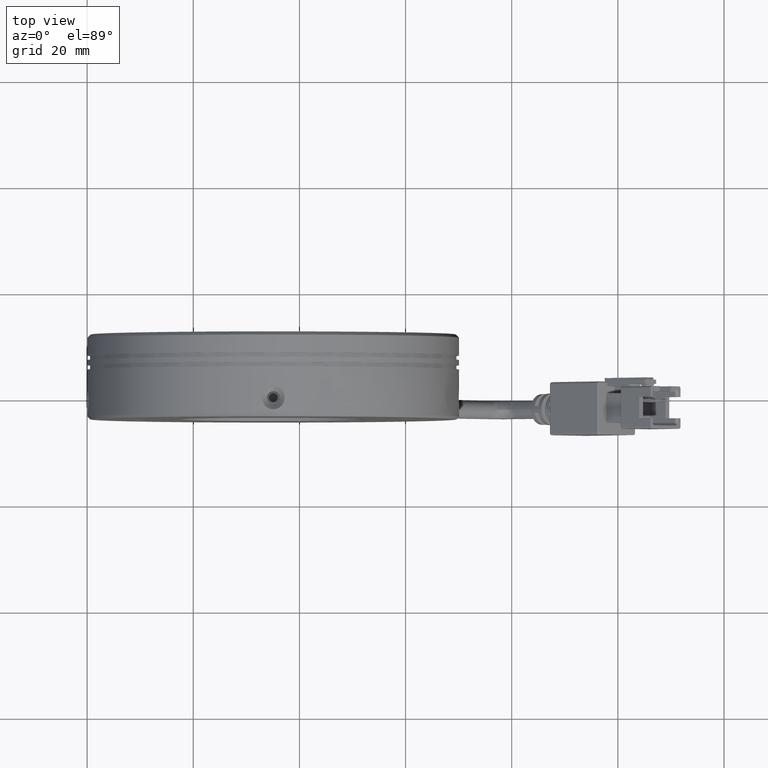
[diagram: clean part render]
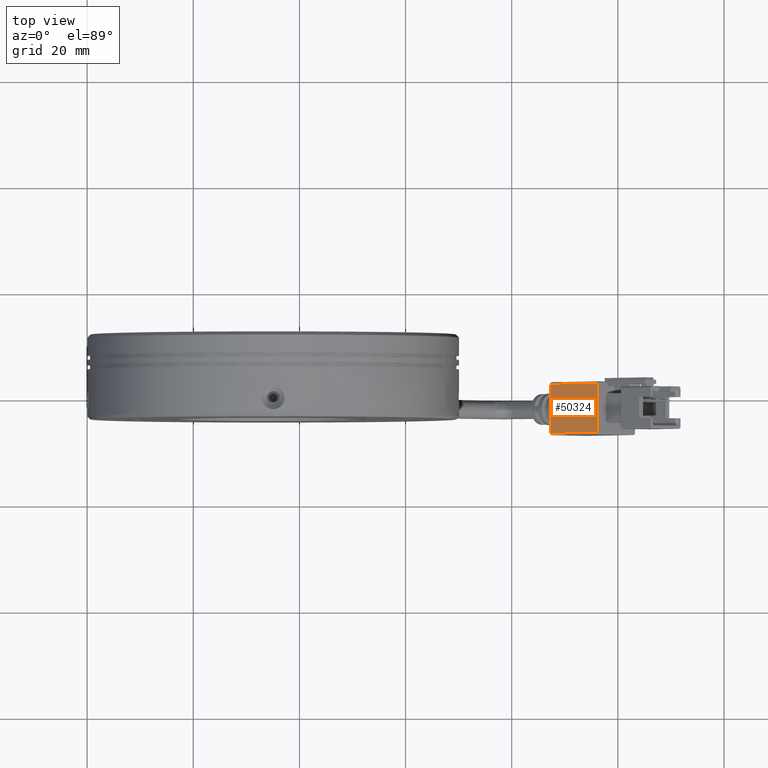
[diagram: same view with one face highlighted and labeled with its STEP entity id]
A machine part, top view. The second image highlights one B-rep face of the part: STEP entity #50324.
In plain terms, the highlighted planar face has unit normal (0.7071, -0, -0.7071).
Its self-contained STEP definition (entity closure, byte-faithful):
#2397 = CARTESIAN_POINT ( 'NONE',  ( 36.24159724468243100, -6.379814118402010500, -18.73832970144380300 ) ) ;
#3177 = VERTEX_POINT ( 'NONE', #55466 ) ;
#4751 = ORIENTED_EDGE ( 'NONE', *, *, #59160, .F. ) ;
#5615 = DIRECTION ( 'NONE',  ( 0.7071067811865441300, -6.938893903907243800E-018, -0.7071067811865510100 ) ) ;
#8382 = CARTESIAN_POINT ( 'NONE',  ( 36.10017588844512200, 2.820185881597990100, -18.87975105768111600 ) ) ;
#9176 = DIRECTION ( 'NONE',  ( -4.653990235683003400E-017, -1.000000000000000000, -3.672682449005601600E-017 ) ) ;
#11792 = VERTEX_POINT ( 'NONE', #80556 ) ;
#12467 = VERTEX_POINT ( 'NONE', #8382 ) ;
#13733 = DIRECTION ( 'NONE',  ( 0.7071067811865510100, -5.887846720064111600E-017, 0.7071067811865441300 ) ) ;
#14915 = CARTESIAN_POINT ( 'NONE',  ( 27.33205180173189300, -6.779814118402010000, -27.64787514439426300 ) ) ;
#15900 = DIRECTION ( 'NONE',  ( -0.7071067811865510100, 5.887846720064111600E-017, -0.7071067811865441300 ) ) ;
#18535 = PLANE ( 'NONE',  #66033 ) ;
#21411 = LINE ( 'NONE', #61627, #71637 ) ;
#22990 = EDGE_LOOP ( 'NONE', ( #61705, #4751, #84475, #71937 ) ) ;
#24496 = EDGE_CURVE ( 'NONE', #3177, #80989, #38459, .T. ) ;
#30205 = VECTOR ( 'NONE', #13733, 1000.000000000000000 ) ;
#32239 = LINE ( 'NONE', #46363, #30205 ) ;
#34759 = FACE_OUTER_BOUND ( 'NONE', #22990, .T. ) ;
#38459 = LINE ( 'NONE', #14915, #71345 ) ;
#44841 = CARTESIAN_POINT ( 'NONE',  ( 36.24159724468243100, -6.779814118402010900, -18.73832970144380300 ) ) ;
#46187 = LINE ( 'NONE', #2397, #61642 ) ;
#46363 = CARTESIAN_POINT ( 'NONE',  ( 36.24159724468243100, 2.820185881597990100, -18.73832970144380300 ) ) ;
#48353 = CARTESIAN_POINT ( 'NONE',  ( 27.33205180173189300, 2.820185881597991000, -27.64787514439426300 ) ) ;
#50324 = ADVANCED_FACE ( 'NONE', ( #34759 ), #18535, .F. ) ;
#51470 = DIRECTION ( 'NONE',  ( 4.653990235683003400E-017, 1.000000000000000000, 3.672682449005601600E-017 ) ) ;
#55466 = CARTESIAN_POINT ( 'NONE',  ( 27.33205180173189300, -6.379814118402009600, -27.64787514439426300 ) ) ;
#59160 = EDGE_CURVE ( 'NONE', #80989, #12467, #32239, .T. ) ;
#61627 = CARTESIAN_POINT ( 'NONE',  ( 36.10017588844512200, -6.779814118402010900, -18.87975105768111600 ) ) ;
#61642 = VECTOR ( 'NONE', #15900, 1000.000000000000000 ) ;
#61705 = ORIENTED_EDGE ( 'NONE', *, *, #68468, .F. ) ;
#64575 = EDGE_CURVE ( 'NONE', #11792, #3177, #46187, .T. ) ;
#66033 = AXIS2_PLACEMENT_3D ( 'NONE', #44841, #5615, #51470 ) ;
#67366 = DIRECTION ( 'NONE',  ( 4.653990235683003400E-017, 1.000000000000000000, 3.672682449005601600E-017 ) ) ;
#68468 = EDGE_CURVE ( 'NONE', #12467, #11792, #21411, .T. ) ;
#71345 = VECTOR ( 'NONE', #67366, 1000.000000000000000 ) ;
#71637 = VECTOR ( 'NONE', #9176, 1000.000000000000000 ) ;
#71937 = ORIENTED_EDGE ( 'NONE', *, *, #64575, .F. ) ;
#80556 = CARTESIAN_POINT ( 'NONE',  ( 36.10017588844512200, -6.379814118402011400, -18.87975105768111600 ) ) ;
#80989 = VERTEX_POINT ( 'NONE', #48353 ) ;
#84475 = ORIENTED_EDGE ( 'NONE', *, *, #24496, .F. ) ;